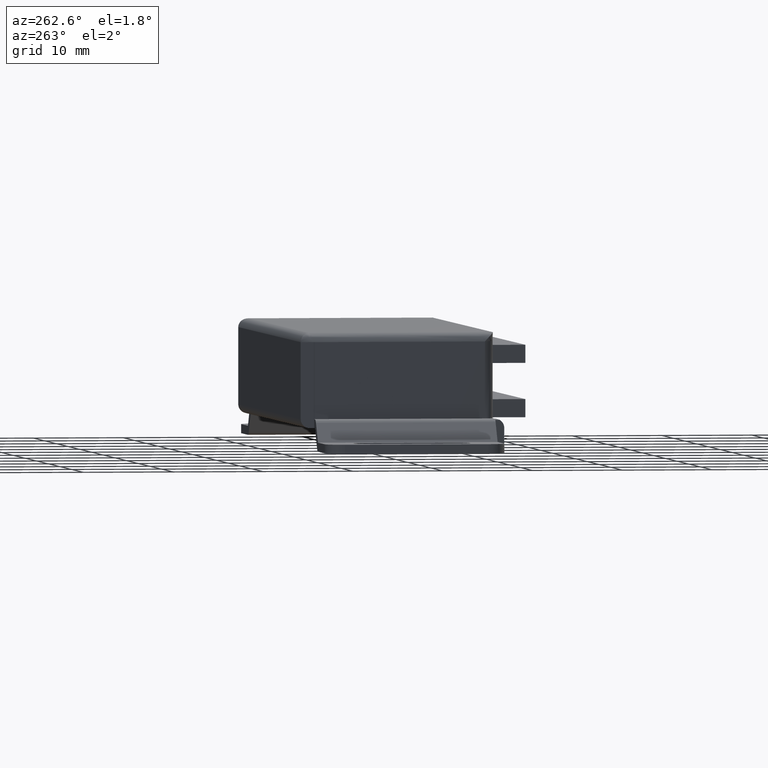
[diagram: clean part render]
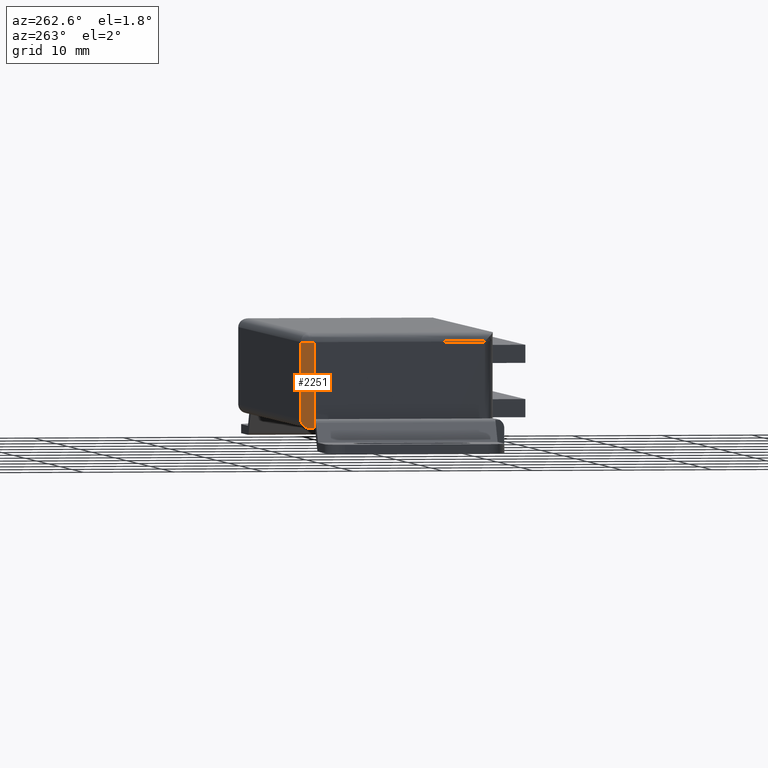
[diagram: same view with one face highlighted and labeled with its STEP entity id]
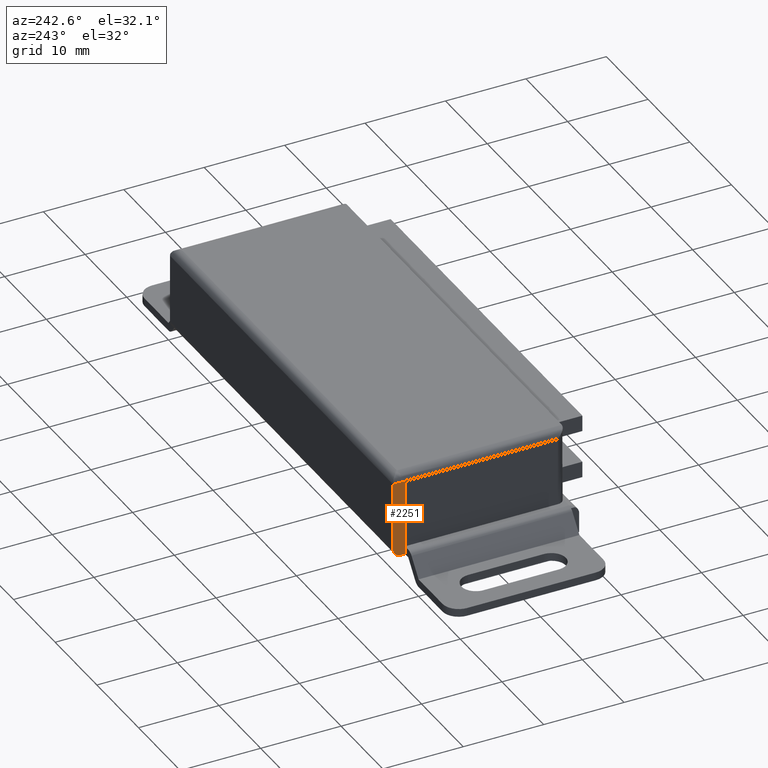
[diagram: same view with one face highlighted and labeled with its STEP entity id]
A machine part, auxiliary view. The second image highlights one B-rep face of the part: STEP entity #2251.
A second angle (auxiliary view) of the same face is appended — the face is thin or edge-on in the first view.
In plain terms, the highlighted face is a freeform B-spline surface patch.
Its self-contained STEP definition (entity closure, byte-faithful):
#786=CARTESIAN_POINT('',(-26.750012999999999,0.500000000000000,2.500000000000100));
#787=VERTEX_POINT('',#786);
#793=CARTESIAN_POINT('',(-26.750012999999999,1.500000000000000,3.500000000000100));
#794=VERTEX_POINT('',#793);
#795=CARTESIAN_POINT('',(-26.750012999999999,1.500000000000000,3.500000000000100));
#796=CARTESIAN_POINT('',(-26.750012999999988,1.500251031920625,3.344505710012199));
#797=CARTESIAN_POINT('',(-26.750012999999939,1.439650208330831,3.091138885525183));
#798=CARTESIAN_POINT('',(-26.750013000000131,1.244296340331433,2.813948438118359));
#799=CARTESIAN_POINT('',(-26.750012999999850,1.027653563330583,2.636145041256982));
#800=CARTESIAN_POINT('',(-26.750013000000010,0.778164595660755,2.525548474159121));
#801=CARTESIAN_POINT('',(-26.750013000000060,0.589993053162024,2.499976623470168));
#802=CARTESIAN_POINT('',(-26.750012999999999,0.500000000000000,2.500000000000100));
#803=B_SPLINE_CURVE_WITH_KNOTS('',3,(#795,#796,#797,#798,#799,#800,#801,#802),.UNSPECIFIED.,.F.,.U.,(4,1,1,1,1,4),(0.000000143578725,0.466348007017983,0.760892754747251,1.006303849170133,1.300850472697815,1.570835744349094),.UNSPECIFIED.);
#804=EDGE_CURVE('',#794,#787,#803,.T.);
#845=CARTESIAN_POINT('',(-26.750012999999999,1.500000000000000,11.999984000000101));
#846=VERTEX_POINT('',#845);
#1086=CARTESIAN_POINT('',(-26.750012999999999,0.0,11.999984000000101));
#1087=VERTEX_POINT('',#1086);
#1088=CARTESIAN_POINT('',(-26.750012999999999,0.0,11.999984000000101));
#1089=CARTESIAN_POINT('',(-26.750012999999999,1.500000000000000,11.999984000000101));
#1090=QUASI_UNIFORM_CURVE('',1,(#1088,#1089),.UNSPECIFIED.,.F.,.U.);
#1091=EDGE_CURVE('',#1087,#846,#1090,.T.);
#2019=CARTESIAN_POINT('',(-26.750012999999999,0.0,3.500000000000100));
#2020=VERTEX_POINT('',#2019);
#2036=CARTESIAN_POINT('',(-26.750012999999999,0.0,11.999984000000101));
#2037=CARTESIAN_POINT('',(-26.750012999999999,0.0,3.500000000000100));
#2038=QUASI_UNIFORM_CURVE('',1,(#2036,#2037),.UNSPECIFIED.,.F.,.U.);
#2039=EDGE_CURVE('',#1087,#2020,#2038,.T.);
#2055=CARTESIAN_POINT('',(-26.750012999999999,1.500000000000000,3.500000000000100));
#2056=CARTESIAN_POINT('',(-26.750012999999999,1.500000000000000,11.999984000000101));
#2057=QUASI_UNIFORM_CURVE('',1,(#2055,#2056),.UNSPECIFIED.,.F.,.U.);
#2058=EDGE_CURVE('',#794,#846,#2057,.T.);
#2228=CARTESIAN_POINT('',(-26.750012999999999,-0.074924997092709,2.025475851553528));
#2229=CARTESIAN_POINT('',(-26.750012999999999,-0.074924997092709,12.474507723764299));
#2230=CARTESIAN_POINT('',(-26.750012999999999,1.574925037325844,2.025475851553528));
#2231=CARTESIAN_POINT('',(-26.750012999999999,1.574925037325844,12.474507723764299));
#2232=B_SPLINE_SURFACE_WITH_KNOTS('',1,1,((#2228,#2230),(#2229,#2231)),.UNSPECIFIED.,.F.,.F.,.U.,(2,2),(2,2),(0.0,10.449031872210769),(0.041708334948495,0.958291687403247),.UNSPECIFIED.);
#2233=ORIENTED_EDGE('',*,*,#2058,.F.);
#2234=ORIENTED_EDGE('',*,*,#804,.T.);
#2235=CARTESIAN_POINT('',(-26.750012999999999,3.469447E-015,2.500000000000100));
#2236=VERTEX_POINT('',#2235);
#2237=CARTESIAN_POINT('',(-26.750012999999999,3.469447E-015,2.500000000000100));
#2238=CARTESIAN_POINT('',(-26.750012999999999,0.500000000000000,2.500000000000100));
#2239=QUASI_UNIFORM_CURVE('',1,(#2237,#2238),.UNSPECIFIED.,.F.,.U.);
#2240=EDGE_CURVE('',#2236,#787,#2239,.T.);
#2241=ORIENTED_EDGE('',*,*,#2240,.F.);
#2242=CARTESIAN_POINT('',(-26.750012999999999,3.469447E-015,2.500000000000100));
#2243=CARTESIAN_POINT('',(-26.750012999999999,0.0,3.500000000000100));
#2244=QUASI_UNIFORM_CURVE('',1,(#2242,#2243),.UNSPECIFIED.,.F.,.U.);
#2245=EDGE_CURVE('',#2236,#2020,#2244,.T.);
#2246=ORIENTED_EDGE('',*,*,#2245,.T.);
#2247=ORIENTED_EDGE('',*,*,#2039,.F.);
#2248=ORIENTED_EDGE('',*,*,#1091,.T.);
#2249=EDGE_LOOP('',(#2233,#2234,#2241,#2246,#2247,#2248));
#2250=FACE_OUTER_BOUND('',#2249,.T.);
#2251=ADVANCED_FACE('',(#2250),#2232,.T.);